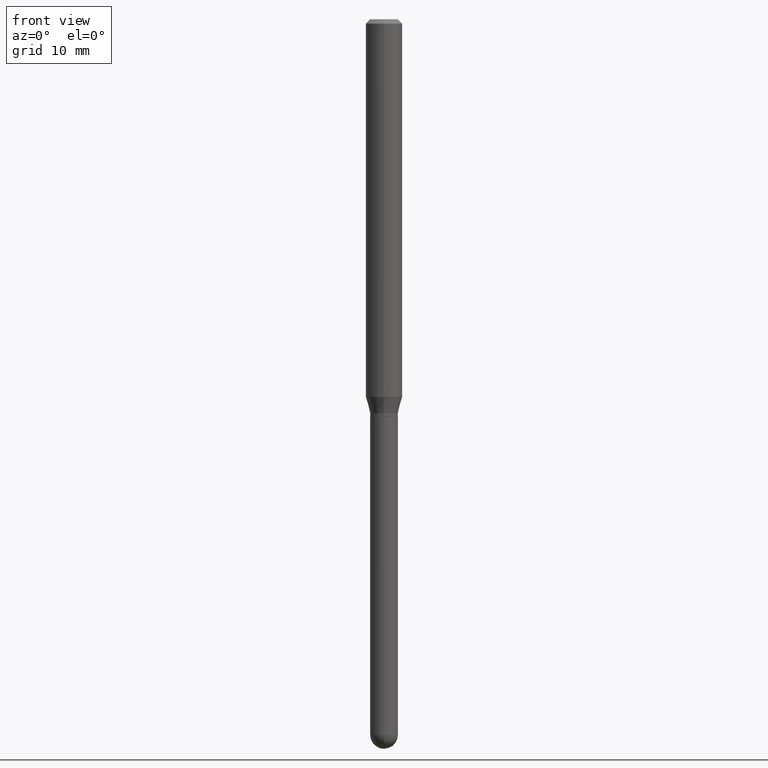
[diagram: clean part render]
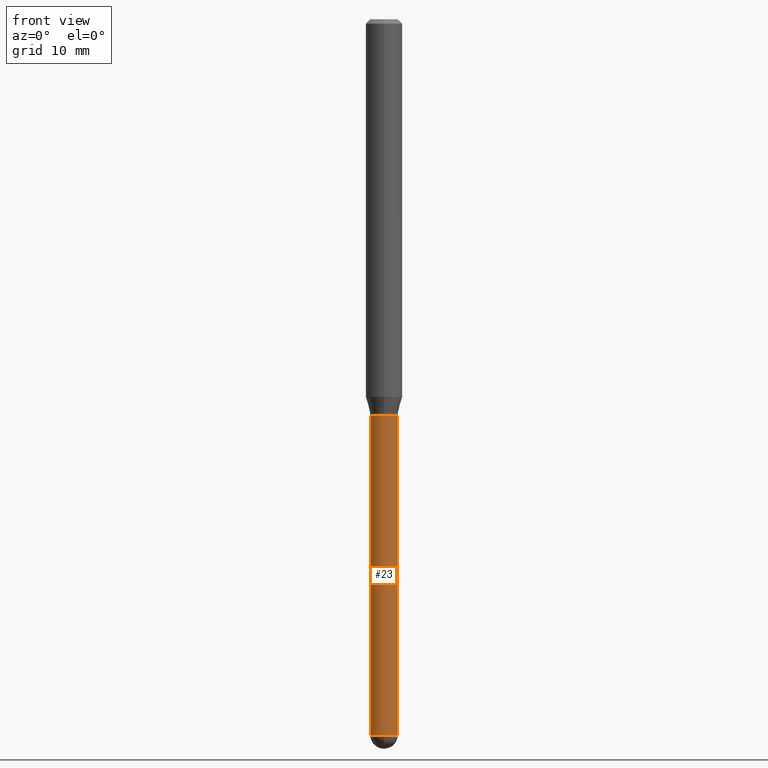
[diagram: same view with one face highlighted and labeled with its STEP entity id]
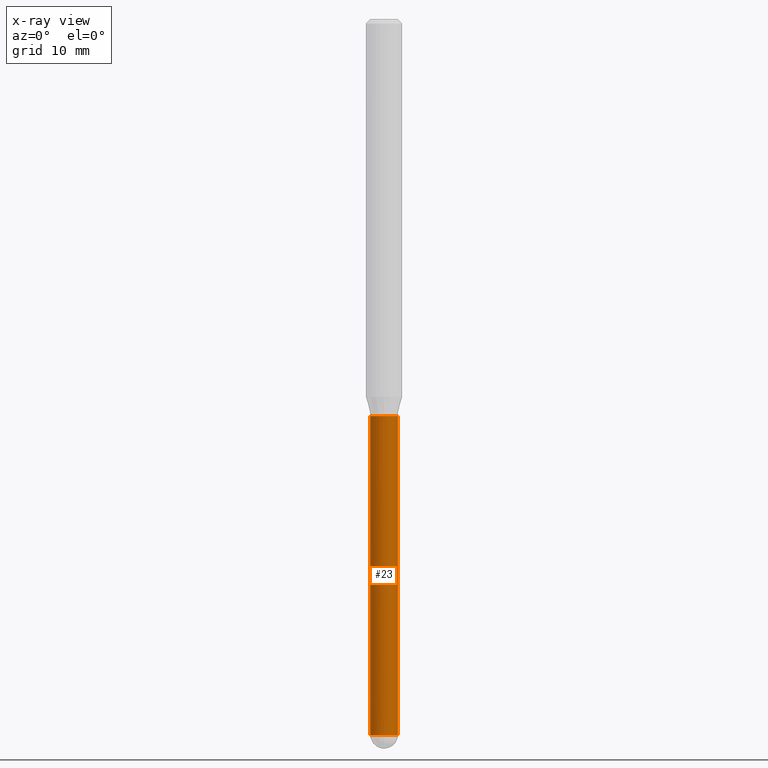
[diagram: x-ray of the same camera — body ghosted, the highlighted face saturated]
A machine part, front view. The second image highlights one B-rep face of the part: STEP entity #23.
The next image is the same camera in x-ray: the body ghosted, the highlighted face saturated — about 0% of this face is hidden behind the body in this view.
In plain terms, the highlighted cylindrical surface (edge-blend (fillet) strip) has radius 1.2065 mm, axis along (-0, 0, 1).
Its self-contained STEP definition (entity closure, byte-faithful):
#20 = CIRCLE ( 'NONE', #171, 0.04750000000000000749 ) ;
#23 = ADVANCED_FACE ( 'NONE', ( #398 ), #195, .T. ) ;
#31 = CIRCLE ( 'NONE', #348, 0.04750000000000000749 ) ;
#34 = LINE ( 'NONE', #196, #469 ) ;
#41 = DIRECTION ( 'NONE',  ( -2.445468806185136877E-29, 3.491481338843145188E-15, 1.000000000000000000 ) ) ;
#44 = DIRECTION ( 'NONE',  ( 1.000000000000000000, -6.982962677686266711E-15, 4.876176775795934672E-29 ) ) ;
#62 = DIRECTION ( 'NONE',  ( 1.000000000000000000, -6.982962677686280910E-15, 0.000000000000000000 ) ) ;
#65 = CARTESIAN_POINT ( 'NONE',  ( -0.04749999999999999362, -6.318128502683699525E-15, -1.360000000000000320 ) ) ;
#66 = VECTOR ( 'NONE', #41, 39.37007874015748143 ) ;
#79 = EDGE_CURVE ( 'NONE', #370, #292, #439, .T. ) ;
#106 = ORIENTED_EDGE ( 'NONE', *, *, #79, .T. ) ;
#112 = CARTESIAN_POINT ( 'NONE',  ( -0.04750000000000000749, -6.318128502683699525E-15, -2.452500000000000124 ) ) ;
#139 = DIRECTION ( 'NONE',  ( 1.000000000000000000, -6.982962677686261977E-15, 0.000000000000000000 ) ) ;
#158 = EDGE_CURVE ( 'NONE', #211, #292, #428, .T. ) ;
#159 = DIRECTION ( 'NONE',  ( -2.445468806185136597E-29, 3.491481338843145583E-15, 1.000000000000000000 ) ) ;
#168 = EDGE_LOOP ( 'NONE', ( #192, #304, #302, #106, #501 ) ) ;
#171 = AXIS2_PLACEMENT_3D ( 'NONE', #456, #270, #62 ) ;
#189 = DIRECTION ( 'NONE',  ( -2.445468806185136877E-29, 3.491481338843145188E-15, 1.000000000000000000 ) ) ;
#192 = ORIENTED_EDGE ( 'NONE', *, *, #499, .F. ) ;
#195 = CYLINDRICAL_SURFACE ( 'NONE', #247, 0.04750000000000000749 ) ;
#196 = CARTESIAN_POINT ( 'NONE',  ( -0.04750000000000000749, 3.375077994860476415E-16, -2.336494167871080260E-30 ) ) ;
#211 = VERTEX_POINT ( 'NONE', #65 ) ;
#218 = DIRECTION ( 'NONE',  ( -2.445468806185136597E-29, 3.491481338843145583E-15, 1.000000000000000000 ) ) ;
#246 = EDGE_CURVE ( 'NONE', #409, #273, #20, .T. ) ;
#247 = AXIS2_PLACEMENT_3D ( 'NONE', #403, #355, #44 ) ;
#270 = DIRECTION ( 'NONE',  ( -2.445468806185136597E-29, 3.491481338843145583E-15, 1.000000000000000000 ) ) ;
#273 = VERTEX_POINT ( 'NONE', #478 ) ;
#292 = VERTEX_POINT ( 'NONE', #481 ) ;
#302 = ORIENTED_EDGE ( 'NONE', *, *, #437, .T. ) ;
#304 = ORIENTED_EDGE ( 'NONE', *, *, #246, .T. ) ;
#321 = CARTESIAN_POINT ( 'NONE',  ( 0.04750000000000000749, -3.316907271900977082E-16, 2.316183968503069432E-30 ) ) ;
#348 = AXIS2_PLACEMENT_3D ( 'NONE', #392, #159, #470 ) ;
#355 = DIRECTION ( 'NONE',  ( -2.445468806185136597E-29, 3.491481338843145583E-15, 1.000000000000000000 ) ) ;
#370 = VERTEX_POINT ( 'NONE', #377 ) ;
#377 = CARTESIAN_POINT ( 'NONE',  ( 0.04750000000000000749, -6.987327029359844530E-15, -2.452500000000000124 ) ) ;
#392 = CARTESIAN_POINT ( 'NONE',  ( 5.997512247169047773E-29, -8.562857983512815004E-15, -2.452500000000000124 ) ) ;
#398 = FACE_OUTER_BOUND ( 'NONE', #168, .T. ) ;
#399 = AXIS2_PLACEMENT_3D ( 'NONE', #410, #218, #139 ) ;
#403 = CARTESIAN_POINT ( 'NONE',  ( 0.000000000000000000, 0.000000000000000000, 0.000000000000000000 ) ) ;
#409 = VERTEX_POINT ( 'NONE', #112 ) ;
#410 = CARTESIAN_POINT ( 'NONE',  ( 3.325837576411786624E-29, -4.748414620826679034E-15, -1.360000000000000320 ) ) ;
#428 = CIRCLE ( 'NONE', #399, 0.04749999999999999362 ) ;
#437 = EDGE_CURVE ( 'NONE', #273, #370, #31, .T. ) ;
#439 = LINE ( 'NONE', #321, #66 ) ;
#456 = CARTESIAN_POINT ( 'NONE',  ( 5.997512247169047773E-29, -8.562857983512815004E-15, -2.452500000000000124 ) ) ;
#469 = VECTOR ( 'NONE', #189, 39.37007874015748143 ) ;
#470 = DIRECTION ( 'NONE',  ( 1.000000000000000000, -6.982962677686280910E-15, 0.000000000000000000 ) ) ;
#478 = CARTESIAN_POINT ( 'NONE',  ( -3.375077994859875895E-16, -0.04750000000000855621, -2.452499999999999680 ) ) ;
#481 = CARTESIAN_POINT ( 'NONE',  ( 0.04749999999999999362, -5.080105348016776545E-15, -1.360000000000000320 ) ) ;
#499 = EDGE_CURVE ( 'NONE', #409, #211, #34, .T. ) ;
#501 = ORIENTED_EDGE ( 'NONE', *, *, #158, .F. ) ;